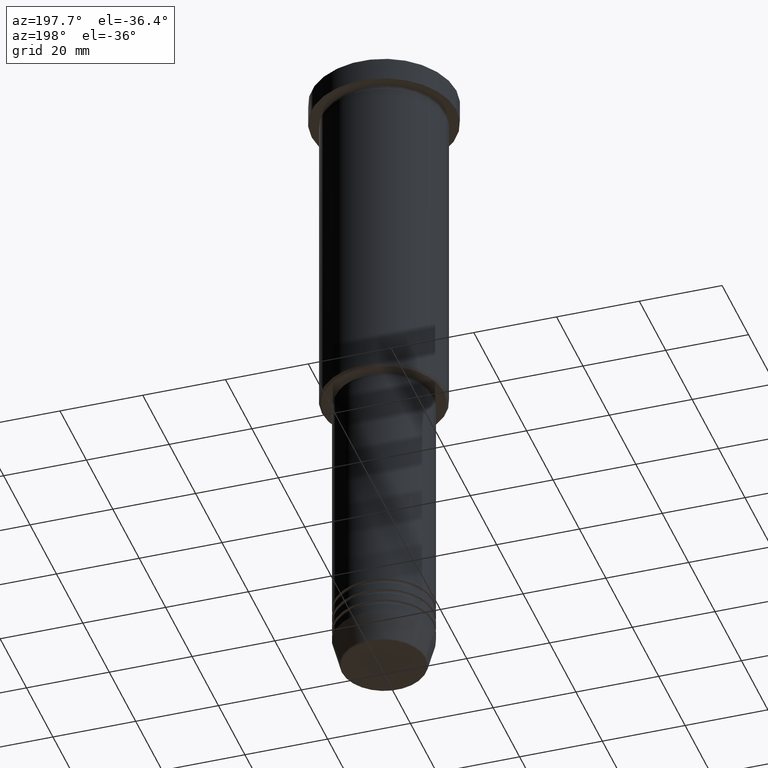
[diagram: clean part render]
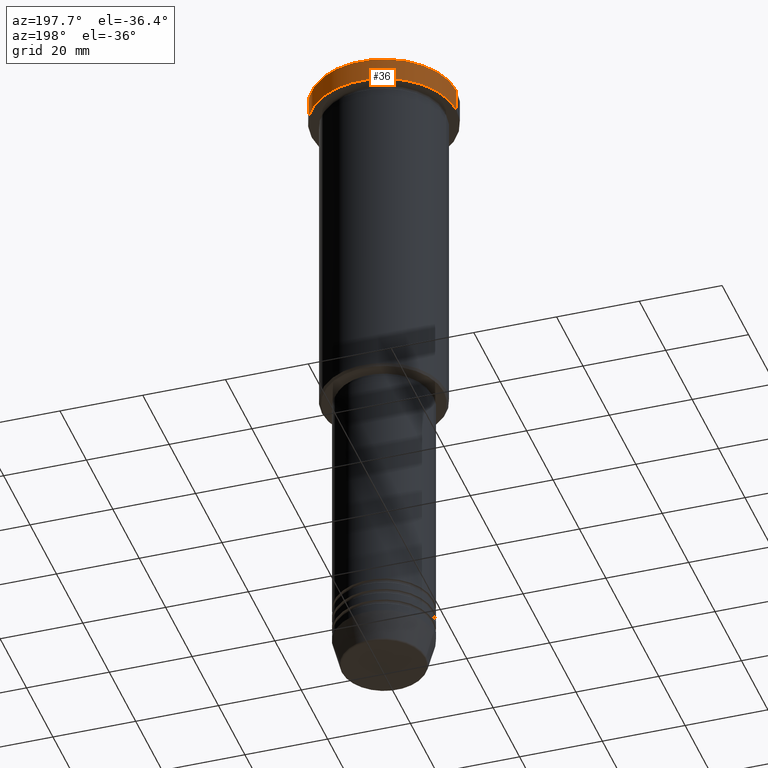
[diagram: same view with one face highlighted and labeled with its STEP entity id]
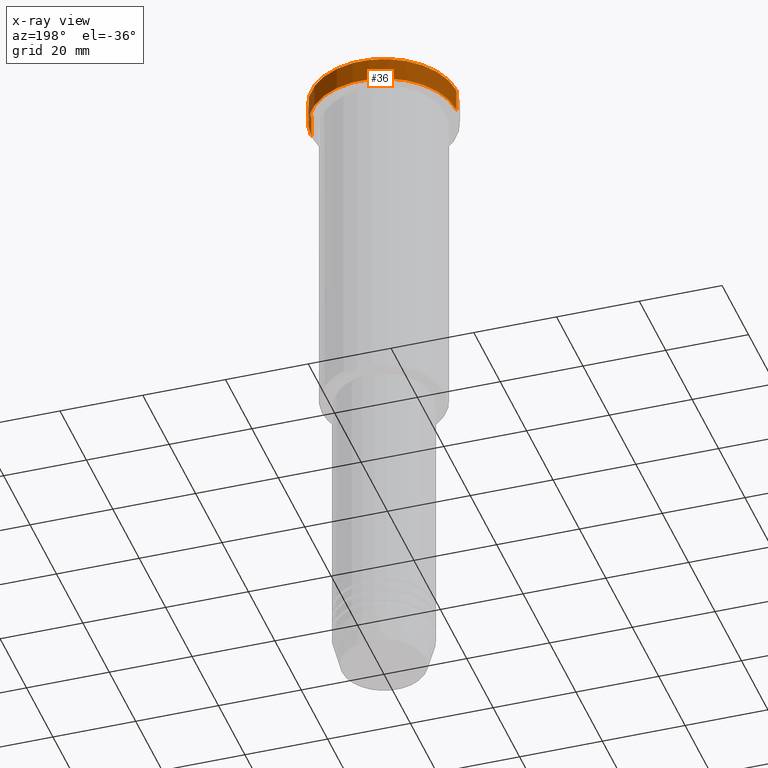
[diagram: x-ray of the same camera — body ghosted, the highlighted face saturated]
A machine part, auxiliary view. The second image highlights one B-rep face of the part: STEP entity #36.
The next image is the same camera in x-ray: the body ghosted, the highlighted face saturated — about 0% of this face is hidden behind the body in this view.
In plain terms, the highlighted cylindrical surface (partial cylindrical patch) has radius 17.5 mm, axis along (-0, -0, 1).
Its self-contained STEP definition (entity closure, byte-faithful):
#12 = LINE ( 'NONE', #193, #287 ) ;
#36 = ADVANCED_FACE ( 'NONE', ( #708 ), #885, .T. ) ;
#79 = VERTEX_POINT ( 'NONE', #398 ) ;
#89 = EDGE_CURVE ( 'NONE', #79, #1065, #888, .T. ) ;
#95 = DIRECTION ( 'NONE',  ( 0.000000000000000000, 0.000000000000000000, -1.000000000000000000 ) ) ;
#144 = AXIS2_PLACEMENT_3D ( 'NONE', #215, #95, #300 ) ;
#191 = CARTESIAN_POINT ( 'NONE',  ( 17.50000000000000000, 0.000000000000000000, -5.999999999999995559 ) ) ;
#193 = CARTESIAN_POINT ( 'NONE',  ( 17.50000000000000000, 0.000000000000000000, 0.000000000000000000 ) ) ;
#199 = CARTESIAN_POINT ( 'NONE',  ( 0.000000000000000000, 0.000000000000000000, 0.000000000000000000 ) ) ;
#205 = EDGE_LOOP ( 'NONE', ( #739, #443, #887, #861 ) ) ;
#215 = CARTESIAN_POINT ( 'NONE',  ( 0.000000000000000000, 0.000000000000000000, -0.4999999999999725775 ) ) ;
#234 = CARTESIAN_POINT ( 'NONE',  ( -17.50000000000000000, 2.143131898507868248E-15, 0.000000000000000000 ) ) ;
#284 = EDGE_CURVE ( 'NONE', #492, #79, #898, .T. ) ;
#287 = VECTOR ( 'NONE', #302, 1000.000000000000000 ) ;
#300 = DIRECTION ( 'NONE',  ( 1.000000000000000000, 0.000000000000000000, 0.000000000000000000 ) ) ;
#302 = DIRECTION ( 'NONE',  ( -0.000000000000000000, -0.000000000000000000, 1.000000000000000000 ) ) ;
#316 = DIRECTION ( 'NONE',  ( -0.000000000000000000, -0.000000000000000000, 1.000000000000000000 ) ) ;
#398 = CARTESIAN_POINT ( 'NONE',  ( -17.50000000000000000, 2.143131898507868248E-15, -0.4999999999999725775 ) ) ;
#443 = ORIENTED_EDGE ( 'NONE', *, *, #284, .T. ) ;
#475 = EDGE_CURVE ( 'NONE', #948, #1065, #12, .T. ) ;
#492 = VERTEX_POINT ( 'NONE', #961 ) ;
#563 = CIRCLE ( 'NONE', #1056, 17.50000000000000000 ) ;
#573 = DIRECTION ( 'NONE',  ( -0.000000000000000000, -0.000000000000000000, 1.000000000000000000 ) ) ;
#590 = DIRECTION ( 'NONE',  ( 1.000000000000000000, 0.000000000000000000, 0.000000000000000000 ) ) ;
#602 = CARTESIAN_POINT ( 'NONE',  ( 17.50000000000000000, 0.000000000000000000, -0.4999999999999725775 ) ) ;
#647 = VECTOR ( 'NONE', #715, 1000.000000000000000 ) ;
#708 = FACE_OUTER_BOUND ( 'NONE', #205, .T. ) ;
#715 = DIRECTION ( 'NONE',  ( -0.000000000000000000, -0.000000000000000000, 1.000000000000000000 ) ) ;
#739 = ORIENTED_EDGE ( 'NONE', *, *, #1066, .T. ) ;
#824 = DIRECTION ( 'NONE',  ( 1.000000000000000000, 0.000000000000000000, 0.000000000000000000 ) ) ;
#830 = AXIS2_PLACEMENT_3D ( 'NONE', #199, #573, #824 ) ;
#861 = ORIENTED_EDGE ( 'NONE', *, *, #475, .F. ) ;
#885 = CYLINDRICAL_SURFACE ( 'NONE', #830, 17.50000000000000000 ) ;
#887 = ORIENTED_EDGE ( 'NONE', *, *, #89, .T. ) ;
#888 = CIRCLE ( 'NONE', #144, 17.50000000000000000 ) ;
#898 = LINE ( 'NONE', #234, #647 ) ;
#948 = VERTEX_POINT ( 'NONE', #191 ) ;
#961 = CARTESIAN_POINT ( 'NONE',  ( -17.50000000000000000, 2.143131898507868248E-15, -5.999999999999995559 ) ) ;
#1021 = CARTESIAN_POINT ( 'NONE',  ( 0.000000000000000000, 0.000000000000000000, -5.999999999999995559 ) ) ;
#1056 = AXIS2_PLACEMENT_3D ( 'NONE', #1021, #316, #590 ) ;
#1065 = VERTEX_POINT ( 'NONE', #602 ) ;
#1066 = EDGE_CURVE ( 'NONE', #948, #492, #563, .T. ) ;